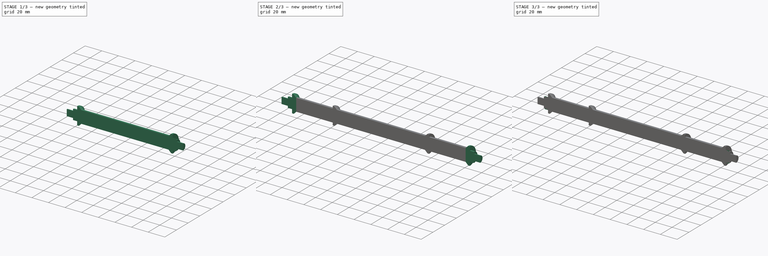
[diagram: build sequence overview — one tinted view per stage of 3, left to right]
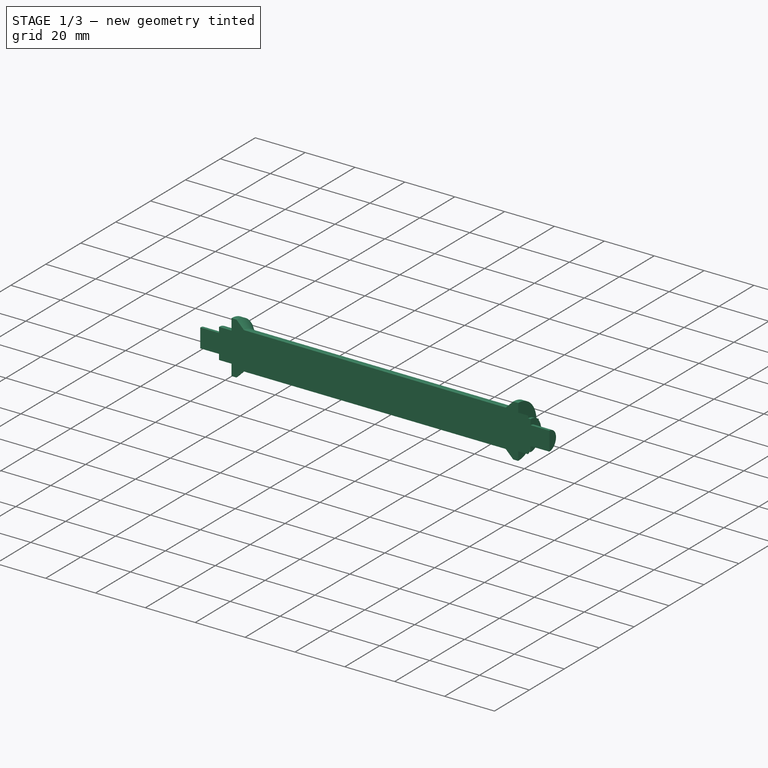
[diagram: stage 1 of 3 — iso view after this stage's code; geometry added in this stage tinted green]
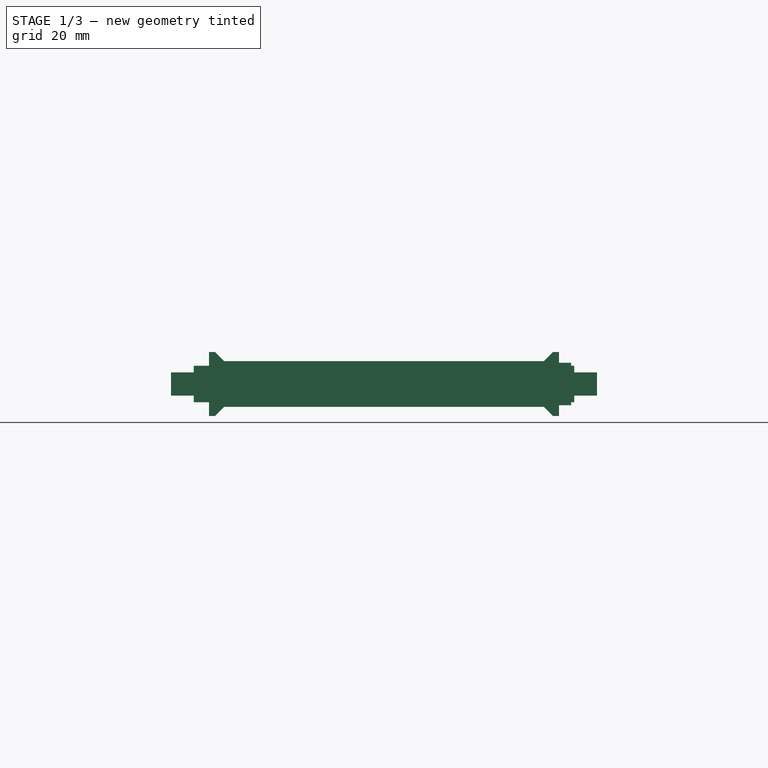
[diagram: stage 1 of 3 — front view after this stage's code; geometry added in this stage tinted green]
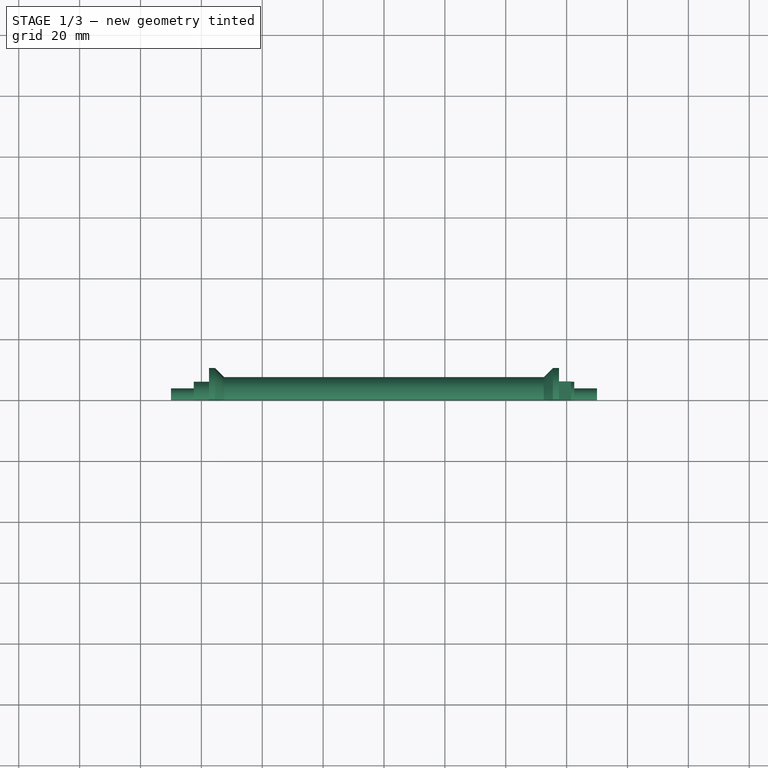
[diagram: stage 1 of 3 — top view after this stage's code; geometry added in this stage tinted green]
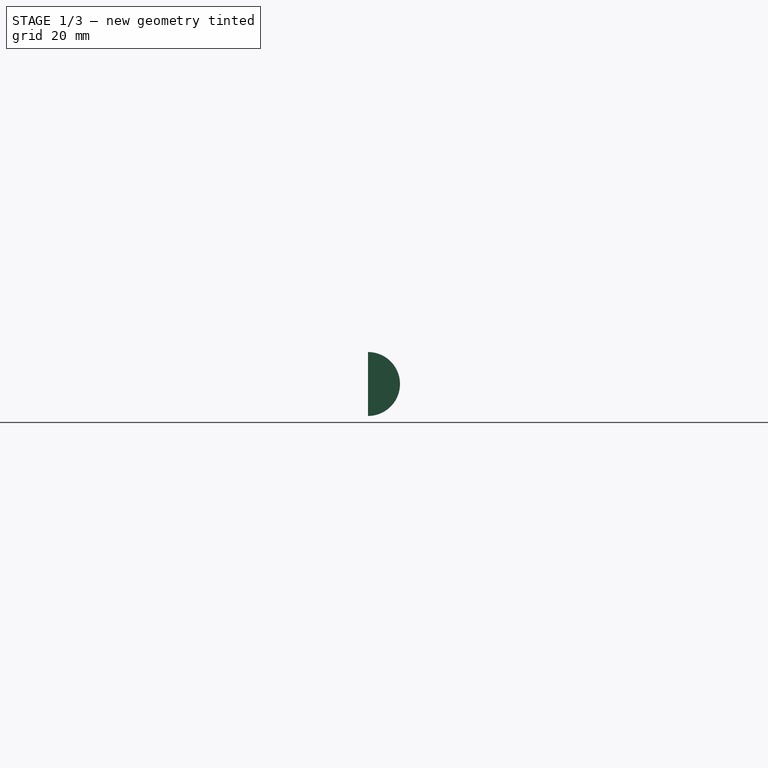
[diagram: stage 1 of 3 — right view after this stage's code; geometry added in this stage tinted green]
FCSTD DOCUMENT  (FreeCAD 0.19R24291 (Git))
Label: testbed_scroll
License: All rights reserved
LicenseURL: http://en.wikipedia.org/wiki/All_rights_reserved
objects: Sketcher::SketchObject×6, PartDesign::Pad×4, PartDesign::Revolution×2, PartDesign::Body×2, App::Part×2, App::MeasureDistance×2
note: 20 computed .brp shape members not serialized (recipe doc carries the construction recipe); baked Part::Feature solids carry a one-line shape summary decoded from their .brp

FEATURE [Sketcher::SketchObject] Sketch
  FullyConstrained = true
  MapMode = 5
  Placement = pos=(0,0,0) rot=(1,0,0;1.5708rad)
  sketch-geometry (16):
    g0: LineSegment StartX=-70 StartY=0 StartZ=0 EndX=-70 EndY=3.8 EndZ=0
    g1: LineSegment StartX=-70 StartY=3.8 StartZ=0 EndX=-62.5 EndY=3.8 EndZ=0
    g2: LineSegment StartX=-62.5 StartY=3.8 StartZ=0 EndX=-62.5 EndY=6 EndZ=0
    g3: LineSegment StartX=-62.5 StartY=6 StartZ=0 EndX=-57.5 EndY=6 EndZ=0
    g4: LineSegment StartX=-57.5 StartY=6 StartZ=0 EndX=-57.5 EndY=10.5 EndZ=0
    g5: LineSegment StartX=-57.5 StartY=10.5 StartZ=0 EndX=-55.5 EndY=10.5 EndZ=0
    g6: LineSegment StartX=-55.5 StartY=10.5 StartZ=0 EndX=-52.5 EndY=7.5 EndZ=0
    g7: LineSegment StartX=-52.5 StartY=7.5 StartZ=0 EndX=52.5 EndY=7.5 EndZ=0
    g8: LineSegment StartX=52.5 StartY=7.5 StartZ=0 EndX=55.5 EndY=10.5 EndZ=0
    g9: LineSegment StartX=55.5 StartY=10.5 StartZ=0 EndX=57.5 EndY=10.5 EndZ=0
    g10: LineSegment StartX=57.5 StartY=10.5 StartZ=0 EndX=57.5 EndY=6 EndZ=0
    g11: LineSegment StartX=62.5 StartY=3.8 StartZ=0 EndX=70 EndY=3.8 EndZ=0
    g12: LineSegment StartX=70 StartY=3.8 StartZ=0 EndX=70 EndY=0 EndZ=0
    g13: LineSegment StartX=70 StartY=0 StartZ=0 EndX=-70 EndY=0 EndZ=0
    g14: LineSegment StartX=57.5 StartY=6 StartZ=0 EndX=62.5 EndY=6 EndZ=0
    g15: LineSegment StartX=62.5 StartY=6 StartZ=0 EndX=62.5 EndY=3.8 EndZ=0
  constraints (46):
    c: PointOnObject(g0,g-1)
    c: Vertical(g0)
    c: Coincident(g0,g1)
    c: Horizontal(g1)
    c: Coincident(g1,g2)
    c: Coincident(g2,g3)
    c: Horizontal(g3)
    c: Coincident(g3,g4)
    c: Vertical(g4)
    c: Coincident(g4,g5)
    c: Horizontal(g5)
    c: Coincident(g5,g6)
    c: Coincident(g6,g7)
    c: Horizontal(g7)
    c: Coincident(g7,g8)
    c: Coincident(g8,g9)
    c: Coincident(g9,g10)
    c: Vertical(g10)
    c: Horizontal(g11)
    c: Coincident(g11,g12)
    c: Vertical(g12)
    c: Coincident(g12,g13)
    c: Coincident(g13,g0)
    c: Angle(g8,g7) = 2.35619
    c: Angle(g7,g6) = 2.35619
    c: DistanceX(g1,g1) = 7.5
    c: Perpendicular(g2,g1)
    c: DistanceY(g7,g12) = -7.5
    c: DistanceX(g7,g7) = 105
    c: DistanceX(g3,g3) = -5
    c: DistanceY(g6,g4) = 3
    c: Equal(g0,g12)
    c: DistanceY(g0,g0) = 3.8
    c: Equal(g9,g5)
    c: DistanceY(g0,g2) = 6
    c: Coincident(g14,g15)
    c: Horizontal(g14)
    c: Vertical(g15)
    c: Coincident(g14,g10)
    c: Coincident(g15,g11)
    c: Equal(g1,g11)
    c: Symmetric(g13,g13,g-1)
    c: DistanceY(g2,g14) = 0
    c: Equal(g3,g14)
    c: Tangent(g5,g9)
    c: DistanceX(g2,g6) = 10
FEATURE [PartDesign::Revolution] Revolution
  Angle = 180
  Axis = (1,0,0)
  Base = (0,0,0)
  Placement = pos=(0,0,0) rot=(1,0,0;1.5708rad)
  Profile = -> Sketch
  ReferenceAxis = -> X_Axis
  Refine = true
  Reversed = true
FEATURE [PartDesign::Body] Body001
  Group = -> [Sketch003,Revolution001,Sketch005,Sketch006,Pad002,Pad003]
  Origin = -> Origin002
  Tip = -> Pad003
FEATURE [App::Part] Part001  label="long"
  Group = -> [Body001]
  Origin = -> Origin003
FEATURE [Sketcher::SketchObject] Sketch007
  FullyConstrained = true
  MapMode = 5
  Placement = pos=(-57.5,0,0) rot=(0.707107,0,-0.707107;3.14159rad)
  Support = -> [Revolution]
  sketch-geometry (5):
    g0: LineSegment StartX=0 StartY=0 StartZ=0 EndX=7 EndY=0 EndZ=0
    g1: LineSegment StartX=7 StartY=0 StartZ=0 EndX=3.5 EndY=-6.06218 EndZ=0
    g2: LineSegment StartX=3.5 StartY=-6.06218 StartZ=0 EndX=-3.5 EndY=-6.06218 EndZ=0
    g3: LineSegment StartX=-3.5 StartY=-6.06218 StartZ=0 EndX=-7 EndY=0 EndZ=0
    g4: LineSegment StartX=-7 StartY=0 StartZ=0 EndX=0 EndY=0 EndZ=0
  constraints (13):
    c: Coincident(g-1,g0)
    c: PointOnObject(g0,g-1)
    c: Coincident(g0,g1)
    c: Coincident(g1,g2)
    c: Horizontal(g2)
    c: Coincident(g2,g3)
    c: Coincident(g3,g4)
    c: Coincident(g4,g0)
    c: Symmetric(g3,g0,g0)
    c: Equal(g1,g2)
    c: Equal(g2,g3)
    c: Equal(g1,g0)
    c: DistanceX(g0,g0) = 7
FEATURE [PartDesign::Pad] Pad
  BaseFeature = -> Revolution
  Direction = (1,1,1)
  Length = 10
  Length2 = 100
  Offset = -1
  Placement = pos=(0,0,0) rot=(1,0,0;1.5708rad)
  Profile = -> Sketch002
  Refine = true
  Type = 3
  UpToFace = -> Revolution [Face13]
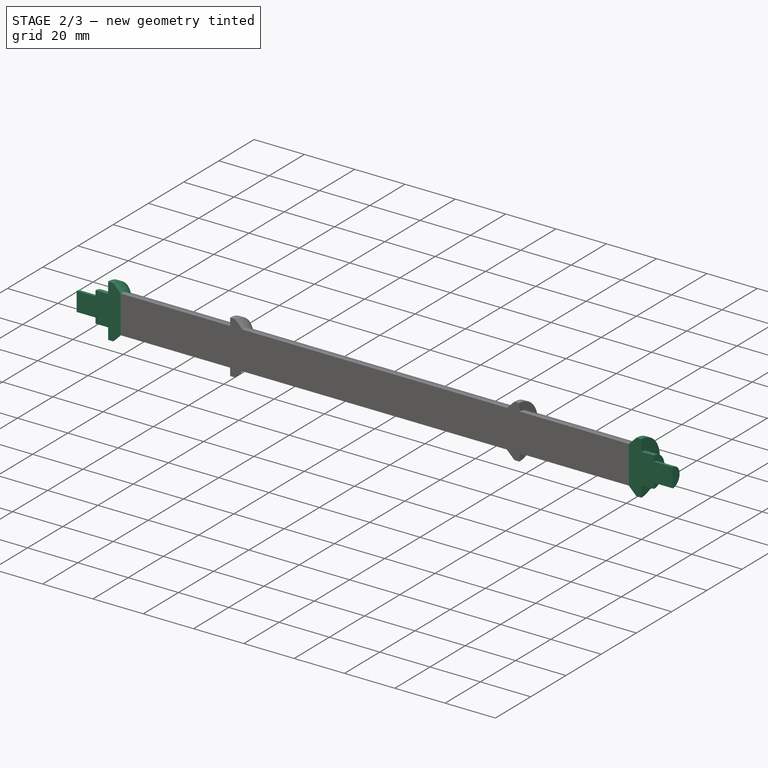
[diagram: stage 2 of 3 — iso view after this stage's code; geometry added in this stage tinted green]
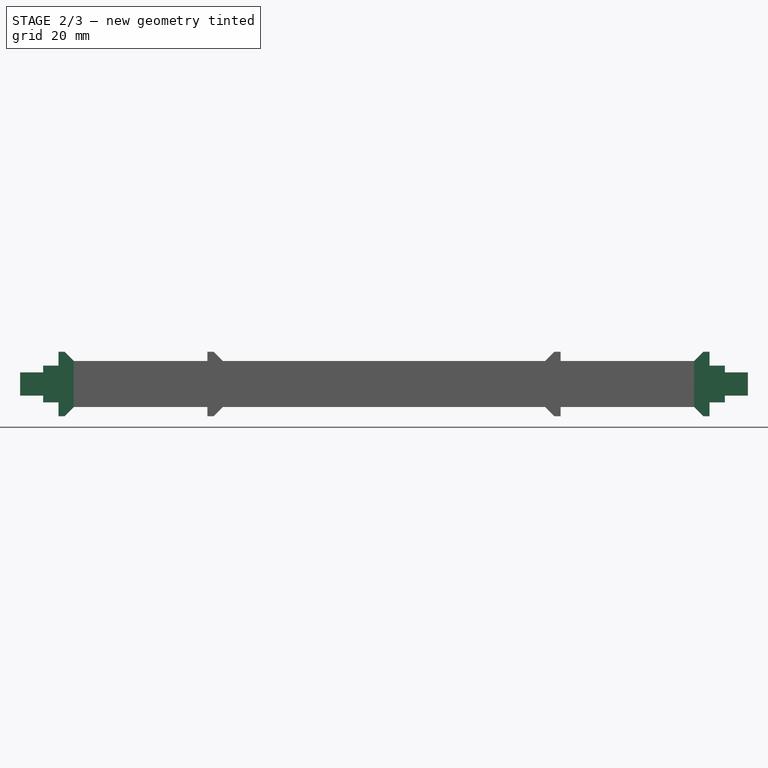
[diagram: stage 2 of 3 — front view after this stage's code; geometry added in this stage tinted green]
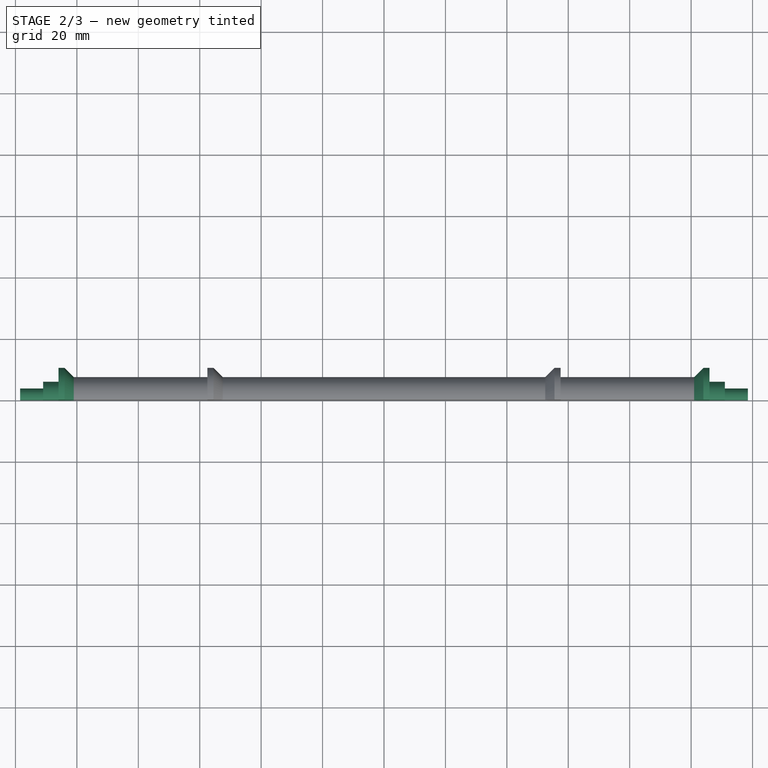
[diagram: stage 2 of 3 — top view after this stage's code; geometry added in this stage tinted green]
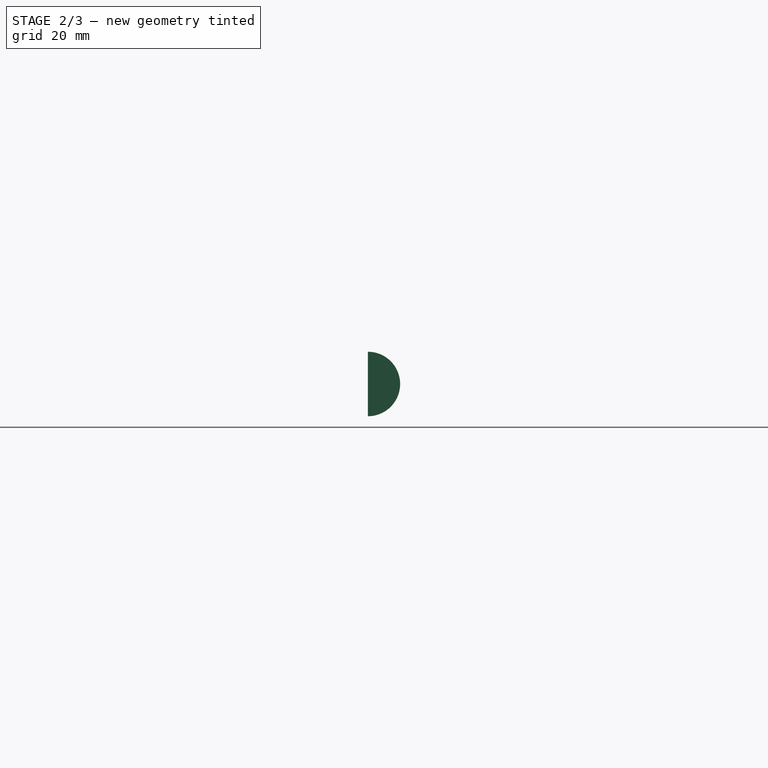
[diagram: stage 2 of 3 — right view after this stage's code; geometry added in this stage tinted green]
FEATURE [Sketcher::SketchObject] Sketch002
  FullyConstrained = true
  MapMode = 5
  Placement = pos=(57.5,0,0) rot=(0.707107,0,0.707107;3.14159rad)
  Support = -> [Revolution]
  sketch-geometry (5):
    g0: LineSegment StartX=0 StartY=0 StartZ=0 EndX=7 EndY=0 EndZ=0
    g1: LineSegment StartX=7 StartY=0 StartZ=0 EndX=3.5 EndY=-6.06218 EndZ=0
    g2: LineSegment StartX=3.5 StartY=-6.06218 StartZ=0 EndX=-3.5 EndY=-6.06218 EndZ=0
    g3: LineSegment StartX=-3.5 StartY=-6.06218 StartZ=0 EndX=-7 EndY=0 EndZ=0
    g4: LineSegment StartX=-7 StartY=0 StartZ=0 EndX=0 EndY=0 EndZ=0
  constraints (13):
    c: Coincident(g-1,g0)
    c: PointOnObject(g0,g-1)
    c: Coincident(g0,g1)
    c: Coincident(g1,g2)
    c: Horizontal(g2)
    c: Coincident(g2,g3)
    c: Coincident(g3,g4)
    c: Coincident(g4,g0)
    c: Symmetric(g3,g0,g0)
    c: Equal(g1,g2)
    c: Equal(g2,g3)
    c: Equal(g1,g0)
    c: DistanceX(g0,g0) = 7
FEATURE [Sketcher::SketchObject] Sketch003
  FullyConstrained = true
  MapMode = 5
  Placement = pos=(0,0,0) rot=(1,0,0;1.5708rad)
  Support = -> [XZ_Plane002]
  sketch-geometry (16):
    g0: LineSegment StartX=-118.5 StartY=0 StartZ=0 EndX=-118.5 EndY=3.8 EndZ=0
    g1: LineSegment StartX=-118.5 StartY=3.8 StartZ=0 EndX=-111 EndY=3.8 EndZ=0
    g2: LineSegment StartX=-111 StartY=3.8 StartZ=0 EndX=-111 EndY=6 EndZ=0
    g3: LineSegment StartX=-111 StartY=6 StartZ=0 EndX=-106 EndY=6 EndZ=0
    g4: LineSegment StartX=-106 StartY=6 StartZ=0 EndX=-106 EndY=10.5 EndZ=0
    g5: LineSegment StartX=-106 StartY=10.5 StartZ=0 EndX=-104 EndY=10.5 EndZ=0
    g6: LineSegment StartX=-104 StartY=10.5 StartZ=0 EndX=-101 EndY=7.5 EndZ=0
    g7: LineSegment StartX=-101 StartY=7.5 StartZ=0 EndX=101 EndY=7.5 EndZ=0
    g8: LineSegment StartX=101 StartY=7.5 StartZ=0 EndX=104 EndY=10.5 EndZ=0
    g9: LineSegment StartX=104 StartY=10.5 StartZ=0 EndX=106 EndY=10.5 EndZ=0
    g10: LineSegment StartX=106 StartY=10.5 StartZ=0 EndX=106 EndY=6 EndZ=0
    g11: LineSegment StartX=111 StartY=3.8 StartZ=0 EndX=118.5 EndY=3.8 EndZ=0
    g12: LineSegment StartX=118.5 StartY=3.8 StartZ=0 EndX=118.5 EndY=0 EndZ=0
    g13: LineSegment StartX=118.5 StartY=0 StartZ=0 EndX=-118.5 EndY=0 EndZ=0
    g14: LineSegment StartX=106 StartY=6 StartZ=0 EndX=111 EndY=6 EndZ=0
    g15: LineSegment StartX=111 StartY=6 StartZ=0 EndX=111 EndY=3.8 EndZ=0
  constraints (47):
    c: PointOnObject(g0,g-1)
    c: Vertical(g0)
    c: Coincident(g0,g1)
    c: Horizontal(g1)
    c: Coincident(g1,g2)
    c: Coincident(g2,g3)
    c: Horizontal(g3)
    c: Coincident(g3,g4)
    c: Vertical(g4)
    c: Coincident(g4,g5)
    c: Horizontal(g5)
    c: Coincident(g5,g6)
    c: Coincident(g6,g7)
    c: Horizontal(g7)
    c: Coincident(g7,g8)
    c: Coincident(g8,g9)
    c: Coincident(g9,g10)
    c: Vertical(g10)
    c: Horizontal(g11)
    c: Coincident(g11,g12)
    c: Vertical(g12)
    c: Coincident(g12,g13)
    c: Coincident(g13,g0)
    c: Angle(g8,g7) = 2.35619
    c: Angle(g7,g6) = 2.35619
    c: DistanceX(g1,g1) = 7.5
    c: Perpendicular(g2,g1)
    c: DistanceY(g7,g12) = -7.5
    c: DistanceX(g3,g3) = -5
    c: DistanceY(g6,g4) = 3
    c: Horizontal(g9)
    c: DistanceY(g5,g9) = 0
    c: Equal(g0,g12)
    c: DistanceY(g0,g0) = 3.8
    c: Equal(g9,g5)
    c: DistanceY(g0,g2) = 6
    c: Coincident(g14,g15)
    c: Horizontal(g14)
    c: Vertical(g15)
    c: Coincident(g14,g10)
    c: Coincident(g15,g11)
    c: Equal(g1,g11)
    c: Symmetric(g13,g13,g-1)
    c: DistanceY(g2,g14) = 0
    c: Equal(g3,g14)
    c: DistanceX(g7,g7) = 202
    c: DistanceX(g2,g6) = 10
FEATURE [PartDesign::Revolution] Revolution001
  Angle = 180
  Axis = (1,0,0)
  Base = (0,0,0)
  Placement = pos=(0,0,0) rot=(1,0,0;1.5708rad)
  Profile = -> Sketch003
  ReferenceAxis = -> X_Axis002
  Refine = true
  Reversed = true
FEATURE [PartDesign::Pad] Pad004
  BaseFeature = -> Pad
  Direction = (1,1,1)
  Length = 10
  Length2 = 100
  Offset = -1
  Placement = pos=(0,0,0) rot=(1,0,0;1.5708rad)
  Profile = -> Sketch007
  Refine = true
  Type = 3
  UpToFace = -> Pad [Face3]
FEATURE [PartDesign::Body] Body
  Group = -> [Sketch,Revolution,Sketch002,Sketch007,Pad,Pad004]
  Origin = -> Origin
  Tip = -> Pad004
FEATURE [App::Part] Part  label="short"
  Group = -> [Body]
  Origin = -> Origin001
FEATURE [App::MeasureDistance] Distance  label="Distance: 21,00 mm"
  Distance = 21
  P1 = (-57.5,1.2517e-06,-10.5)
  P2 = (-57.5,-1.2517e-06,10.5)
FEATURE [App::MeasureDistance] Distance001  label="Distance: 202,01 mm"
  Distance = 202.008
  P1 = (-101,8.9407e-07,-7.5)
  P2 = (101,1.79487,-7.28206)
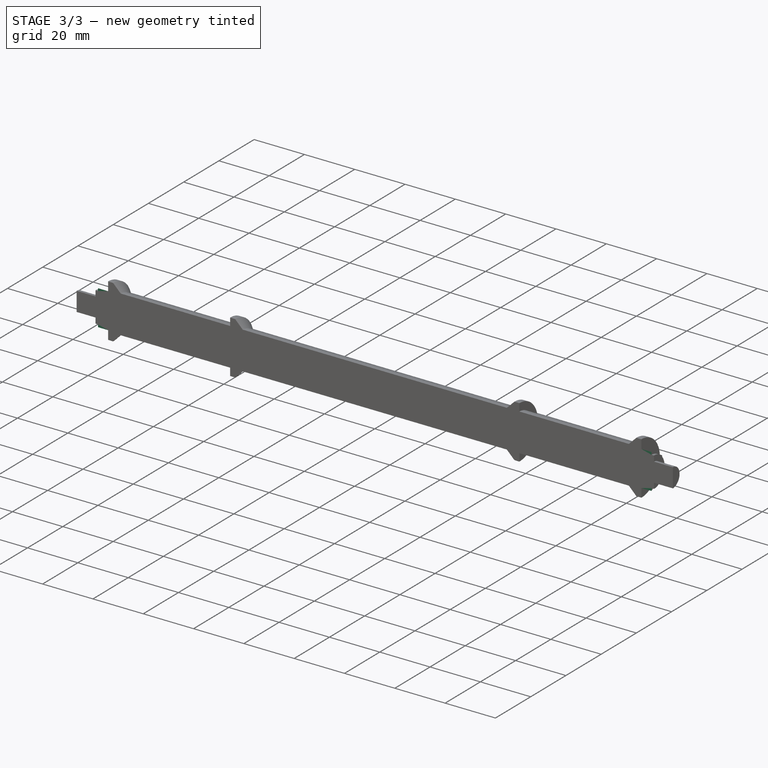
[diagram: stage 3 of 3 — iso view after this stage's code; geometry added in this stage tinted green]
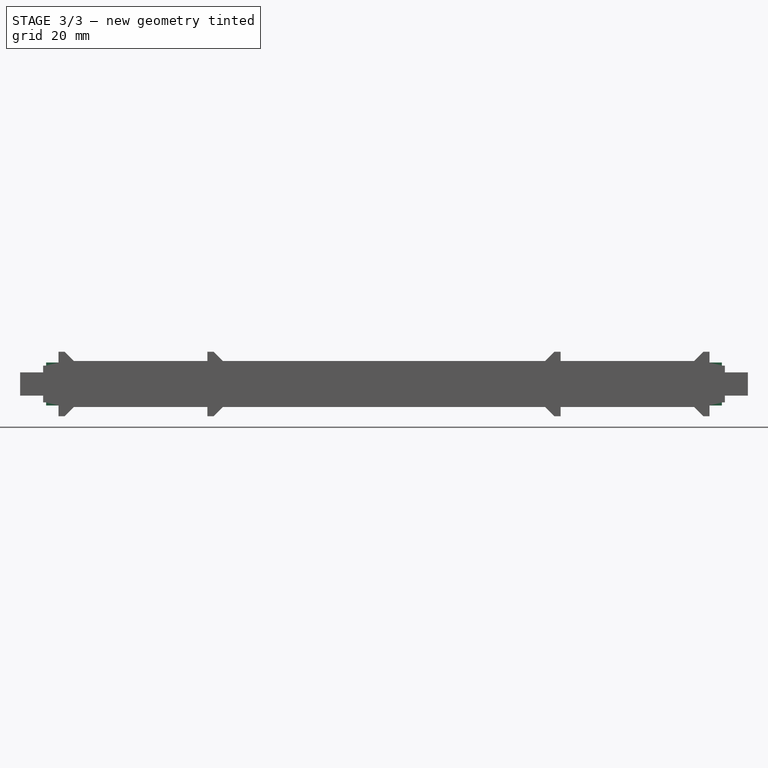
[diagram: stage 3 of 3 — front view after this stage's code; geometry added in this stage tinted green]
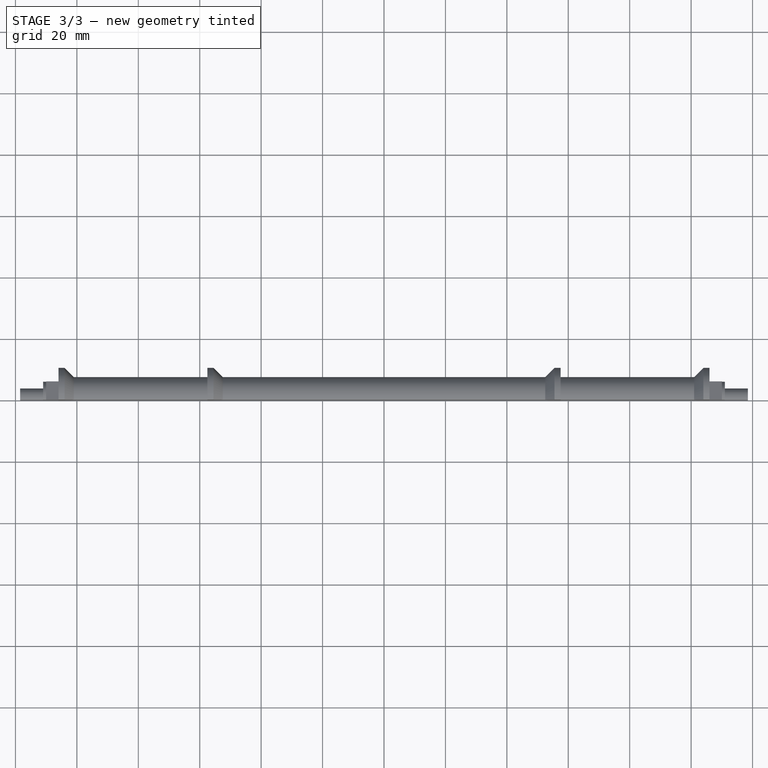
[diagram: stage 3 of 3 — top view after this stage's code; geometry added in this stage tinted green]
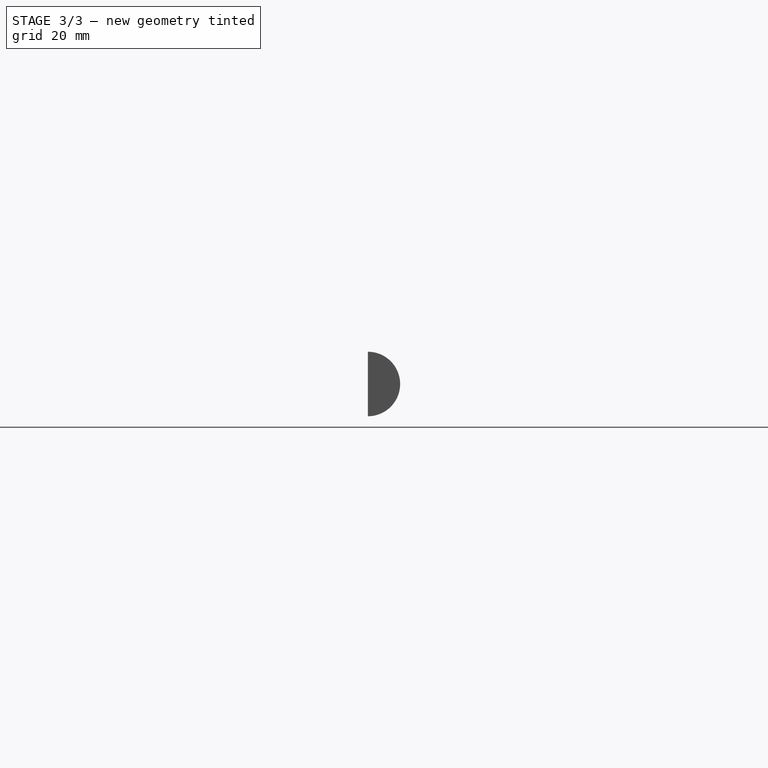
[diagram: stage 3 of 3 — right view after this stage's code; geometry added in this stage tinted green]
FEATURE [Sketcher::SketchObject] Sketch005
  FullyConstrained = true
  MapMode = 5
  Placement = pos=(106,0,0) rot=(0.707107,0,0.707107;3.14159rad)
  Support = -> [Revolution001]
  sketch-geometry (5):
    g0: LineSegment StartX=0 StartY=0 StartZ=0 EndX=7 EndY=0 EndZ=0
    g1: LineSegment StartX=7 StartY=0 StartZ=0 EndX=3.5 EndY=-6.06218 EndZ=0
    g2: LineSegment StartX=3.5 StartY=-6.06218 StartZ=0 EndX=-3.5 EndY=-6.06218 EndZ=0
    g3: LineSegment StartX=-3.5 StartY=-6.06218 StartZ=0 EndX=-7 EndY=0 EndZ=0
    g4: LineSegment StartX=-7 StartY=0 StartZ=0 EndX=0 EndY=0 EndZ=0
  constraints (13):
    c: Coincident(g-1,g0)
    c: PointOnObject(g0,g-1)
    c: Coincident(g0,g1)
    c: Coincident(g1,g2)
    c: Horizontal(g2)
    c: Coincident(g2,g3)
    c: Coincident(g3,g4)
    c: Coincident(g4,g0)
    c: Symmetric(g3,g0,g0)
    c: Equal(g1,g2)
    c: Equal(g2,g3)
    c: Equal(g1,g0)
    c: DistanceX(g0,g0) = 7
FEATURE [Sketcher::SketchObject] Sketch006
  FullyConstrained = true
  MapMode = 5
  Placement = pos=(-106,0,0) rot=(0.707107,0,-0.707107;3.14159rad)
  Support = -> [Revolution001]
  sketch-geometry (5):
    g0: LineSegment StartX=0 StartY=0 StartZ=0 EndX=7 EndY=0 EndZ=0
    g1: LineSegment StartX=7 StartY=0 StartZ=0 EndX=3.5 EndY=-6.06218 EndZ=0
    g2: LineSegment StartX=3.5 StartY=-6.06218 StartZ=0 EndX=-3.5 EndY=-6.06218 EndZ=0
    g3: LineSegment StartX=-3.5 StartY=-6.06218 StartZ=0 EndX=-7 EndY=0 EndZ=0
    g4: LineSegment StartX=-7 StartY=0 StartZ=0 EndX=0 EndY=0 EndZ=0
  constraints (13):
    c: Coincident(g-1,g0)
    c: PointOnObject(g0,g-1)
    c: Coincident(g0,g1)
    c: Coincident(g1,g2)
    c: Horizontal(g2)
    c: Coincident(g2,g3)
    c: Coincident(g3,g4)
    c: Coincident(g4,g0)
    c: Symmetric(g3,g0,g0)
    c: Equal(g1,g2)
    c: Equal(g2,g3)
    c: Equal(g1,g0)
    c: DistanceX(g0,g0) = 7
FEATURE [PartDesign::Pad] Pad002
  BaseFeature = -> Revolution001
  Direction = (1,1,1)
  Length = 10
  Length2 = 100
  Offset = -1
  Placement = pos=(0,0,0) rot=(1,0,0;1.5708rad)
  Profile = -> Sketch005
  Refine = true
  Type = 3
  UpToFace = -> Revolution001 [Face13]
FEATURE [PartDesign::Pad] Pad003
  BaseFeature = -> Pad002
  Direction = (1,1,1)
  Length = 10
  Length2 = 100
  Offset = -1
  Placement = pos=(0,0,0) rot=(1,0,0;1.5708rad)
  Profile = -> Sketch006
  Refine = true
  Type = 3
  UpToFace = -> Pad002 [Face3]
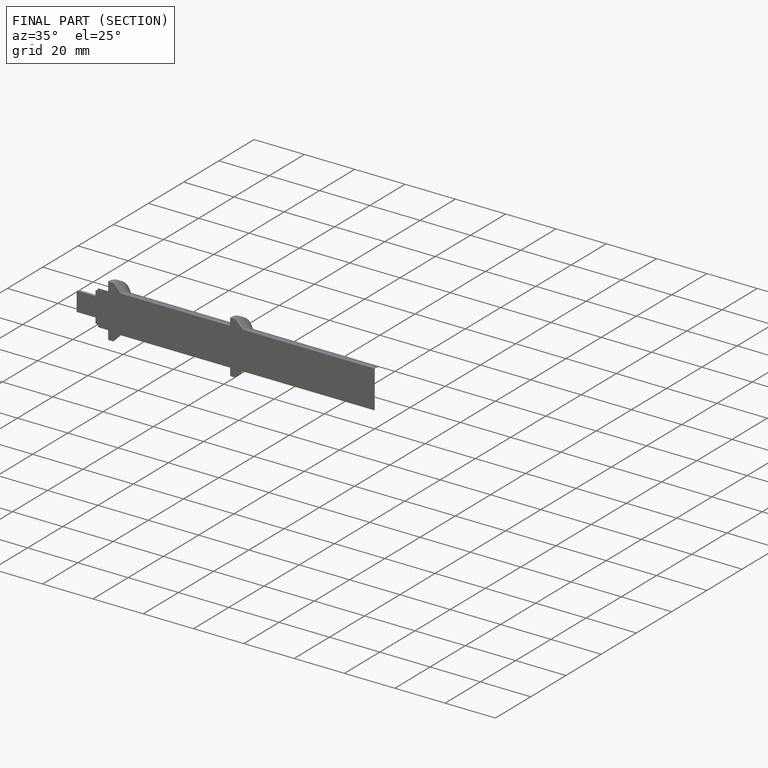
[diagram: finished part — half-section view (interior)]
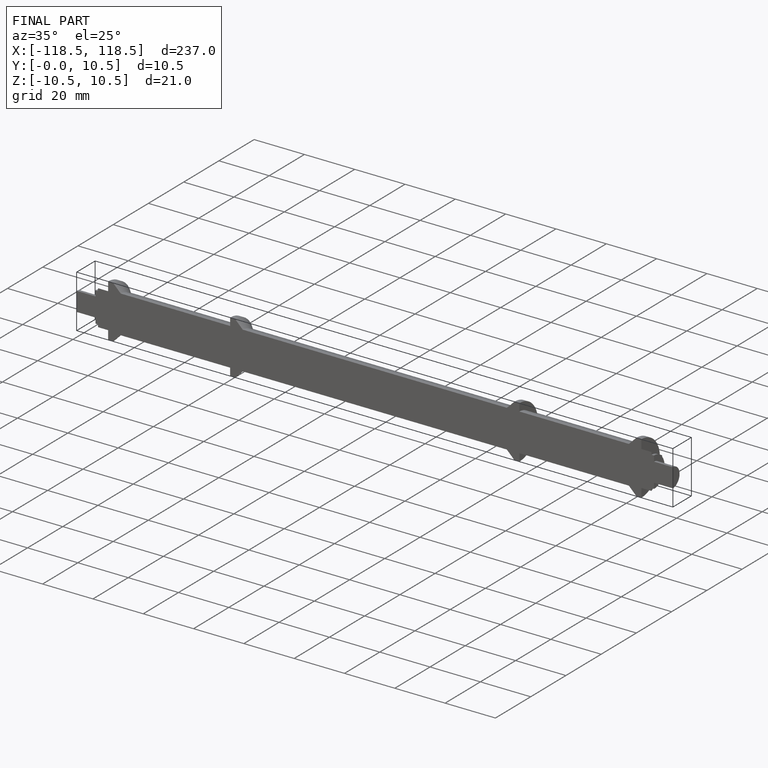
[diagram: finished part — iso view with bounding-box wireframe]
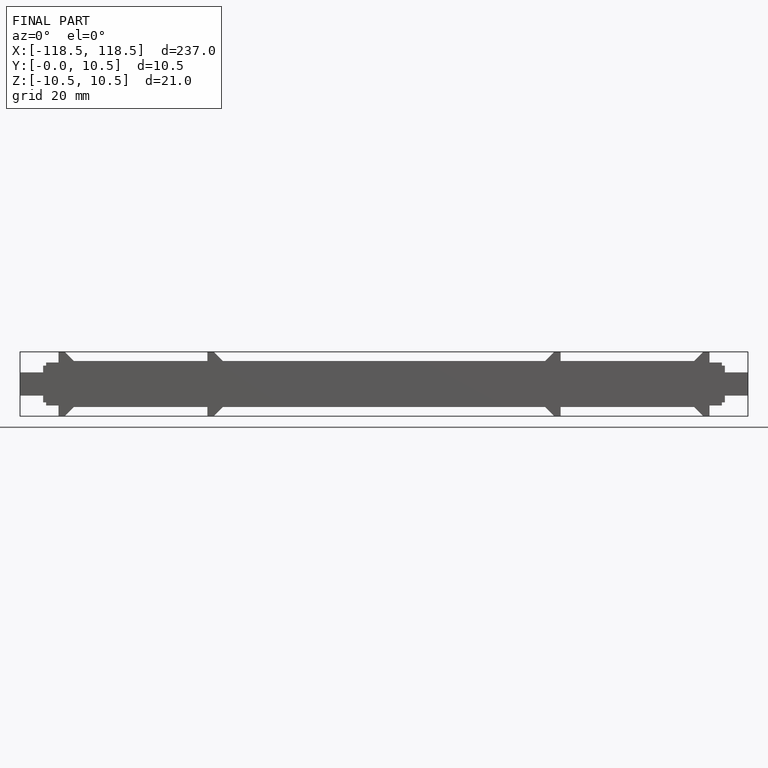
[diagram: finished part — front view with bounding-box wireframe]
